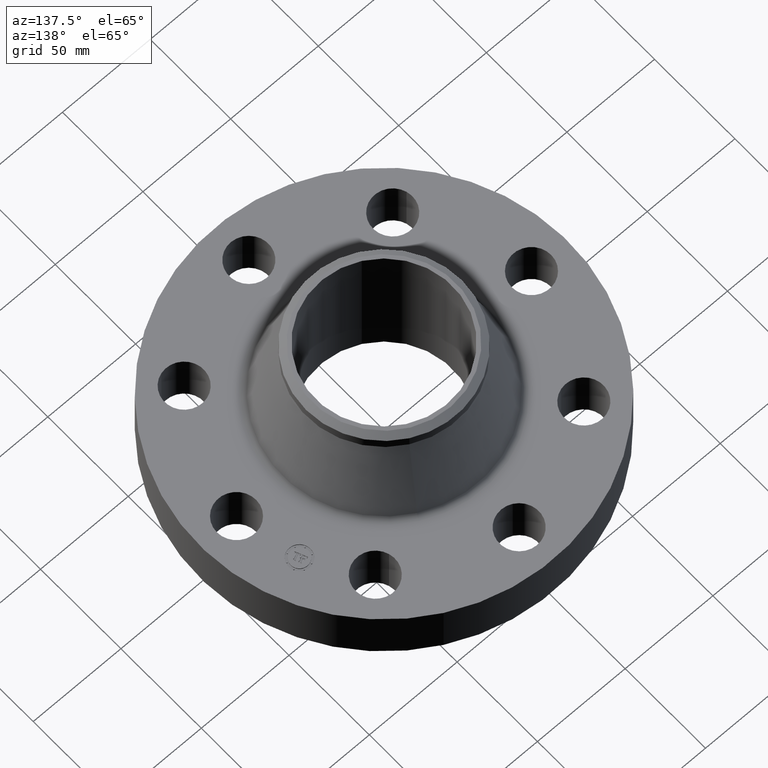
[diagram: clean part render]
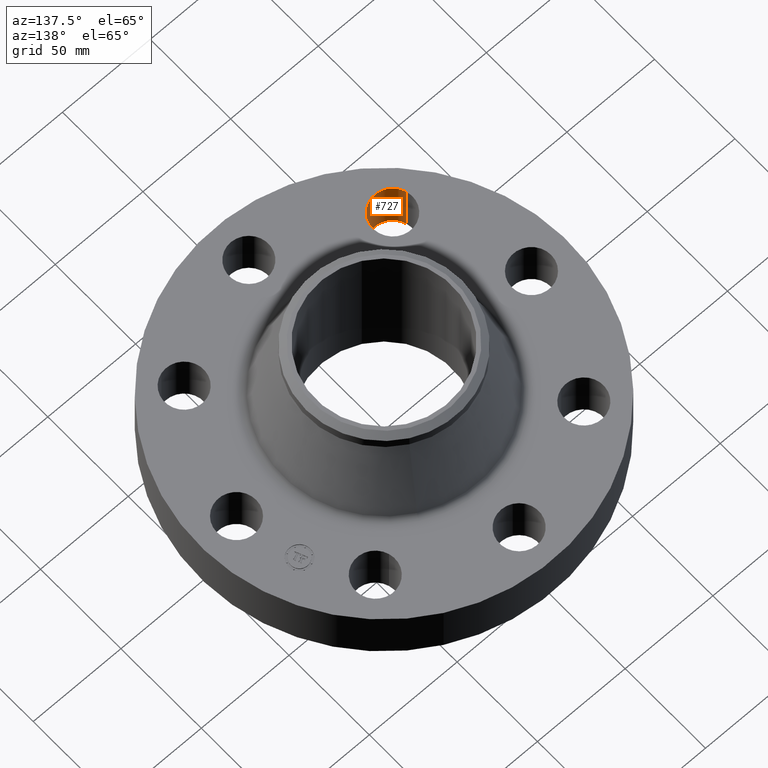
[diagram: same view with one face highlighted and labeled with its STEP entity id]
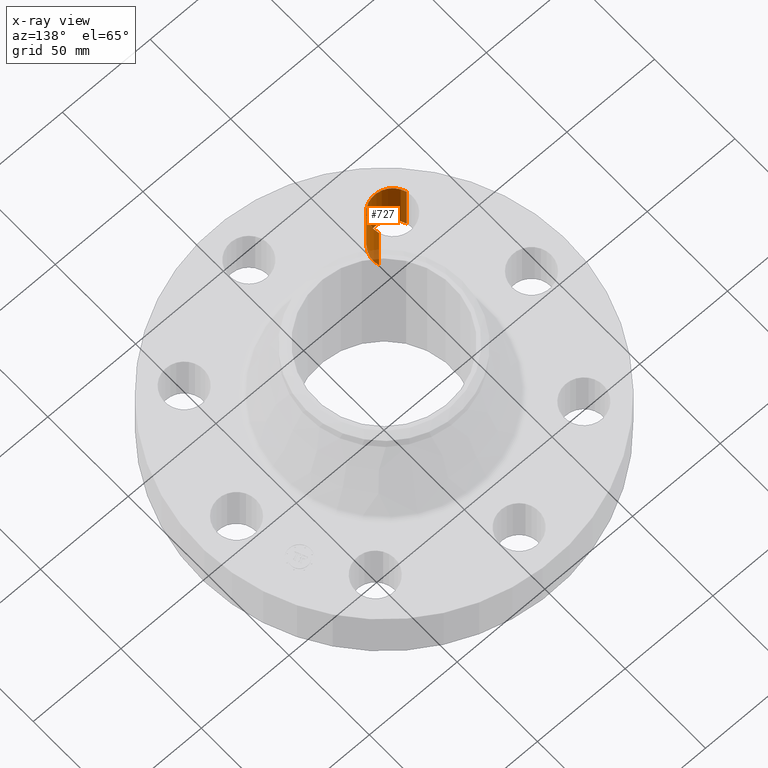
[diagram: x-ray of the same camera — body ghosted, the highlighted face saturated]
A machine part, auxiliary view. The second image highlights one B-rep face of the part: STEP entity #727.
The next image is the same camera in x-ray: the body ghosted, the highlighted face saturated — about 7% of this face is hidden behind the body in this view.
In plain terms, the highlighted cylindrical surface (edge-blend (fillet) strip) has radius 11.176 mm, axis along (-0, 0, -1).
Its self-contained STEP definition (entity closure, byte-faithful):
#479=AXIS2_PLACEMENT_3D('Circle Axis2P3D',#477,#478,$) ;
#700=AXIS2_PLACEMENT_3D('Cylinder Axis2P3D',#697,#698,#699) ;
#718=AXIS2_PLACEMENT_3D('Circle Axis2P3D',#716,#717,$) ;
#477=CARTESIAN_POINT('Axis2P3D Location',(-2.34052344574,-2.34052344574,0.)) ;
#481=CARTESIAN_POINT('Vertex',(-1.91832160854,-2.21664605203,0.)) ;
#483=CARTESIAN_POINT('Vertex',(-2.76272528293,-2.46440083944,0.)) ;
#697=CARTESIAN_POINT('Axis2P3D Location',(-2.34052344574,-2.34052344574,1.24606299213)) ;
#702=CARTESIAN_POINT('Line Origine',(-1.91832160854,-2.21664605203,0.625000000003)) ;
#706=CARTESIAN_POINT('Vertex',(-1.91832160854,-2.21664605203,1.25000000001)) ;
#709=CARTESIAN_POINT('Line Origine',(-2.76272528293,-2.46440083944,0.625000000003)) ;
#713=CARTESIAN_POINT('Vertex',(-2.76272528293,-2.46440083944,1.25000000001)) ;
#716=CARTESIAN_POINT('Axis2P3D Location',(-2.34052344574,-2.34052344574,1.25000000001)) ;
#478=DIRECTION('Axis2P3D Direction',(0.,0.,-0.0393700787402)) ;
#698=DIRECTION('Axis2P3D Direction',(-0.,0.,-0.0393700787402)) ;
#699=DIRECTION('Axis2P3D XDirection',(-0.0377775444876,-0.0110842335096,0.)) ;
#703=DIRECTION('Vector Direction',(0.,0.,-0.0393700787402)) ;
#710=DIRECTION('Vector Direction',(0.,0.,-0.0393700787402)) ;
#717=DIRECTION('Axis2P3D Direction',(-0.,0.,-0.0393700787402)) ;
#704=VECTOR('Line Direction',#703,0.0393700787402) ;
#711=VECTOR('Line Direction',#710,0.0393700787402) ;
#722=ORIENTED_EDGE('',*,*,#708,.F.) ;
#723=ORIENTED_EDGE('',*,*,#485,.T.) ;
#724=ORIENTED_EDGE('',*,*,#715,.T.) ;
#725=ORIENTED_EDGE('',*,*,#720,.F.) ;
#727=ADVANCED_FACE('PartBody',(#726),#701,.F.) ;
#480=CIRCLE('generated circle',#479,0.440000000002) ;
#719=CIRCLE('generated circle',#718,0.440000000002) ;
#701=CYLINDRICAL_SURFACE('generated cylinder',#700,0.440000000002) ;
#485=EDGE_CURVE('',#482,#484,#480,.T.) ;
#708=EDGE_CURVE('',#482,#707,#705,.F.) ;
#715=EDGE_CURVE('',#484,#714,#712,.F.) ;
#720=EDGE_CURVE('',#707,#714,#719,.T.) ;
#721=EDGE_LOOP('',(#722,#723,#724,#725)) ;
#726=FACE_OUTER_BOUND('',#721,.T.) ;
#705=LINE('Line',#702,#704) ;
#712=LINE('Line',#709,#711) ;
#482=VERTEX_POINT('',#481) ;
#484=VERTEX_POINT('',#483) ;
#707=VERTEX_POINT('',#706) ;
#714=VERTEX_POINT('',#713) ;